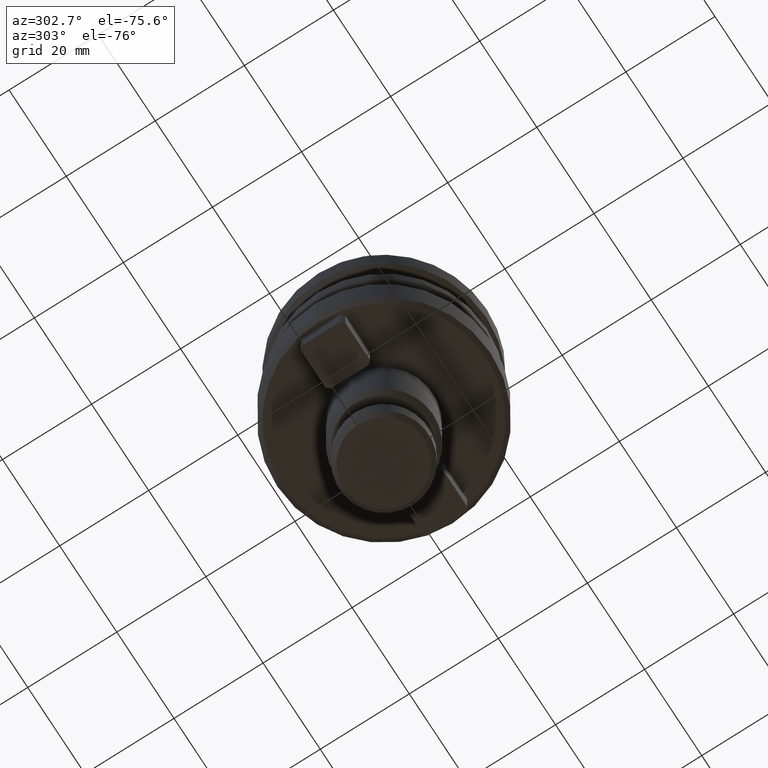
[diagram: clean part render]
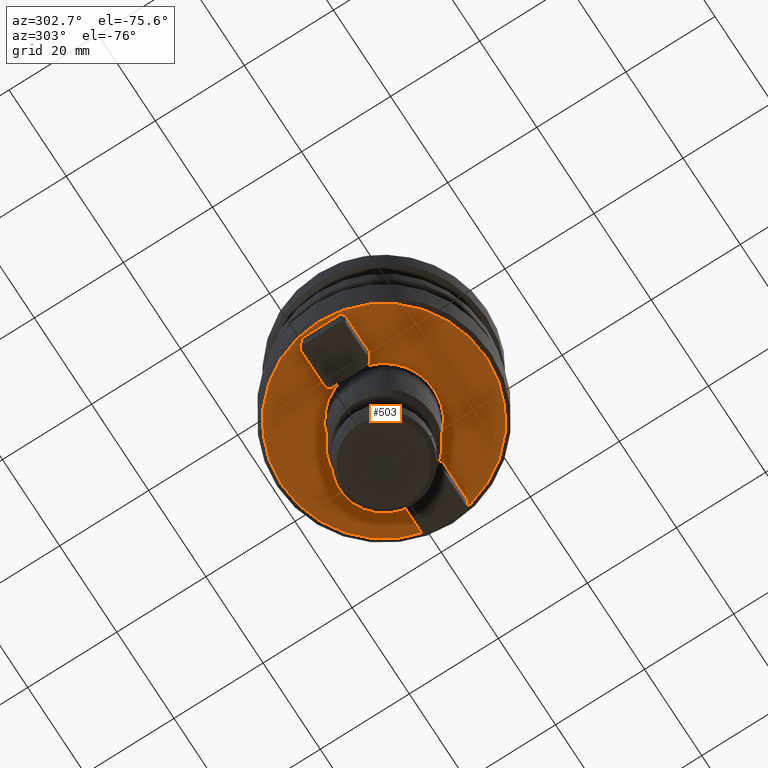
[diagram: same view with one face highlighted and labeled with its STEP entity id]
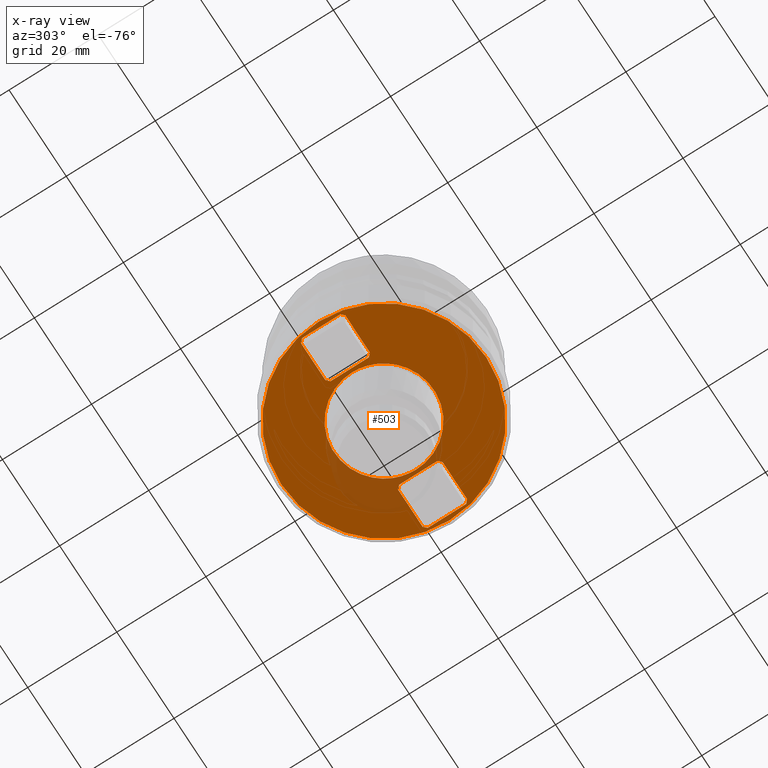
[diagram: x-ray of the same camera — body ghosted, the highlighted face saturated]
A machine part, auxiliary view. The second image highlights one B-rep face of the part: STEP entity #503.
The next image is the same camera in x-ray: the body ghosted, the highlighted face saturated — about 10% of this face is hidden behind the body in this view.
In plain terms, the highlighted planar face has unit normal (0, 0, 1).
Its self-contained STEP definition (entity closure, byte-faithful):
#10 =( BOUNDED_CURVE ( )  B_SPLINE_CURVE ( 3, ( #273, #191, #180, #177 ),
 .UNSPECIFIED., .F., .F. ) 
 B_SPLINE_CURVE_WITH_KNOTS ( ( 4, 4 ),
 ( 0.0000000000000000000, 1.000000000000000000 ),
 .UNSPECIFIED. ) 
 CURVE ( )  GEOMETRIC_REPRESENTATION_ITEM ( )  RATIONAL_B_SPLINE_CURVE ( ( 0.9565783019699934900, 0.3188594339899975000, 0.3188594339899975000, 0.9565783019699934900 ) ) 
 REPRESENTATION_ITEM ( '' )  );
#13 = CARTESIAN_POINT ( 'NONE',  ( -21.64999999999999900, 4.649999999999999500, -40.00000000000000000 ) ) ;
#18 = CARTESIAN_POINT ( 'NONE',  ( 21.99999999929599800, -4.300000000073999300, -40.00000000000000000 ) ) ;
#43 = VECTOR ( 'NONE', #2995, 1000.000000000000000 ) ;
#54 = EDGE_LOOP ( 'NONE', ( #1241, #2625, #2716, #2242, #2395, #170, #3248, #1520 ) ) ;
#86 = CARTESIAN_POINT ( 'NONE',  ( 12.69999999832399800, -5.000000000897999900, -40.00000000000000000 ) ) ;
#88 = DIRECTION ( 'NONE',  ( 0.7071067811865470200, -0.7071067811865479100, -0.0000000000000000000 ) ) ;
#119 = VECTOR ( 'NONE', #88, 1000.000000000000100 ) ;
#140 = VERTEX_POINT ( 'NONE', #1696 ) ;
#166 = CARTESIAN_POINT ( 'NONE',  ( 11.99999999000000600, 0.0000000000000000000, -40.00000000000000000 ) ) ;
#167 = ORIENTED_EDGE ( 'NONE', *, *, #1588, .T. ) ;
#170 = ORIENTED_EDGE ( 'NONE', *, *, #3100, .F. ) ;
#175 = EDGE_CURVE ( 'NONE', #140, #2401, #3092, .T. ) ;
#176 = ORIENTED_EDGE ( 'NONE', *, *, #2217, .T. ) ;
#177 = CARTESIAN_POINT ( 'NONE',  ( -11.25000000745442300, 0.0000000000000000000, -39.99999999984029100 ) ) ;
#180 = CARTESIAN_POINT ( 'NONE',  ( -11.24999999919492700, -22.49999999937216100, -39.99999999973381600 ) ) ;
#191 = CARTESIAN_POINT ( 'NONE',  ( 11.24999999919492700, -22.49999999937216100, -39.99999999973381600 ) ) ;
#199 = LINE ( 'NONE', #470, #2884 ) ;
#200 = CIRCLE ( 'NONE', #2224, 22.99999999999996400 ) ;
#203 = CARTESIAN_POINT ( 'NONE',  ( 21.99999999718399800, 0.0000000000000000000, -40.00000000000000000 ) ) ;
#215 = ORIENTED_EDGE ( 'NONE', *, *, #1474, .T. ) ;
#232 = VERTEX_POINT ( 'NONE', #1494 ) ;
#273 = CARTESIAN_POINT ( 'NONE',  ( 11.25000000745442600, 0.0000000000000000000, -39.99999999984029100 ) ) ;
#277 = EDGE_CURVE ( 'NONE', #2206, #2190, #933, .T. ) ;
#282 = FACE_BOUND ( 'NONE', #2356, .T. ) ;
#292 = VECTOR ( 'NONE', #2956, 1000.000000000000100 ) ;
#293 = EDGE_CURVE ( 'NONE', #2963, #1307, #1834, .T. ) ;
#324 = AXIS2_PLACEMENT_3D ( 'NONE', #1735, #1523, #1728 ) ;
#334 = VECTOR ( 'NONE', #2991, 1000.000000000000100 ) ;
#443 = CARTESIAN_POINT ( 'NONE',  ( 11.25000000745442600, 0.0000000000000000000, -39.99999999984029100 ) ) ;
#444 = CARTESIAN_POINT ( 'NONE',  ( 11.24999999919492700, 22.49999999937216100, -39.99999999973381600 ) ) ;
#464 = CARTESIAN_POINT ( 'NONE',  ( -11.25000000745442300, 0.0000000000000000000, -39.99999999984029100 ) ) ;
#469 = CARTESIAN_POINT ( 'NONE',  ( -11.24999999919492700, 22.49999999937216100, -39.99999999973381600 ) ) ;
#470 = CARTESIAN_POINT ( 'NONE',  ( 12.35000000000000000, 4.649999999999999500, -40.00000000000000000 ) ) ;
#479 = DIRECTION ( 'NONE',  ( 0.0000000000000000000, 1.000000000000000000, 0.0000000000000000000 ) ) ;
#503 = ADVANCED_FACE ( 'NONE', ( #3290, #282, #1255, #1919 ), #1739, .F. ) ;
#519 = CARTESIAN_POINT ( 'NONE',  ( 12.69999999832399800, 5.000000000897999900, -40.00000000000000000 ) ) ;
#522 = LINE ( 'NONE', #13, #334 ) ;
#523 = CARTESIAN_POINT ( 'NONE',  ( -21.99999999718400200, 0.0000000000000000000, -40.00000000000000000 ) ) ;
#547 = ORIENTED_EDGE ( 'NONE', *, *, #841, .F. ) ;
#551 = EDGE_CURVE ( 'NONE', #2008, #2798, #199, .T. ) ;
#563 = ORIENTED_EDGE ( 'NONE', *, *, #3324, .F. ) ;
#567 = ORIENTED_EDGE ( 'NONE', *, *, #1550, .F. ) ;
#603 = DIRECTION ( 'NONE',  ( -0.7071067811865470200, 0.7071067811865479100, 0.0000000000000000000 ) ) ;
#615 = VERTEX_POINT ( 'NONE', #1905 ) ;
#622 = VERTEX_POINT ( 'NONE', #1907 ) ;
#645 = CARTESIAN_POINT ( 'NONE',  ( -12.69999999832400000, 5.000000000897999900, -40.00000000000000000 ) ) ;
#768 = EDGE_CURVE ( 'NONE', #615, #3287, #1638, .T. ) ;
#827 = EDGE_CURVE ( 'NONE', #1166, #1307, #2474, .T. ) ;
#828 = ORIENTED_EDGE ( 'NONE', *, *, #2836, .F. ) ;
#841 = EDGE_CURVE ( 'NONE', #2054, #2678, #2273, .T. ) ;
#878 = VECTOR ( 'NONE', #2704, 1000.000000000000100 ) ;
#904 = LINE ( 'NONE', #2621, #1379 ) ;
#933 = LINE ( 'NONE', #1752, #1738 ) ;
#987 = VECTOR ( 'NONE', #2031, 1000.000000000000100 ) ;
#1002 = VERTEX_POINT ( 'NONE', #3071 ) ;
#1018 = VERTEX_POINT ( 'NONE', #3087 ) ;
#1084 = LINE ( 'NONE', #1559, #119 ) ;
#1166 = VERTEX_POINT ( 'NONE', #3365 ) ;
#1176 = VECTOR ( 'NONE', #2489, 1000.000000000000000 ) ;
#1225 = EDGE_CURVE ( 'NONE', #2321, #1018, #10, .T. ) ;
#1241 = ORIENTED_EDGE ( 'NONE', *, *, #551, .F. ) ;
#1244 = LINE ( 'NONE', #166, #43 ) ;
#1255 = FACE_BOUND ( 'NONE', #54, .T. ) ;
#1273 = CARTESIAN_POINT ( 'NONE',  ( 0.0000000000000000000, 5.233505283446285800E-030, -40.00000000000003600 ) ) ;
#1291 =( BOUNDED_CURVE ( )  B_SPLINE_CURVE ( 3, ( #464, #469, #444, #443 ),
 .UNSPECIFIED., .F., .F. ) 
 B_SPLINE_CURVE_WITH_KNOTS ( ( 4, 4 ),
 ( 0.0000000000000000000, 1.000000000000000000 ),
 .UNSPECIFIED. ) 
 CURVE ( )  GEOMETRIC_REPRESENTATION_ITEM ( )  RATIONAL_B_SPLINE_CURVE ( ( 0.9565783019699930500, 0.3188594339899972800, 0.3188594339899972800, 0.9565783019699930500 ) ) 
 REPRESENTATION_ITEM ( '' )  );
#1307 = VERTEX_POINT ( 'NONE', #86 ) ;
#1375 = LINE ( 'NONE', #523, #1380 ) ;
#1379 = VECTOR ( 'NONE', #1422, 1000.000000000000000 ) ;
#1380 = VECTOR ( 'NONE', #479, 1000.000000000000000 ) ;
#1402 = DIRECTION ( 'NONE',  ( -0.7071067811865470200, 0.7071067811865479100, -0.0000000000000000000 ) ) ;
#1417 = EDGE_CURVE ( 'NONE', #2054, #1002, #522, .T. ) ;
#1422 = DIRECTION ( 'NONE',  ( -1.000000000000000000, -0.0000000000000000000, -0.0000000000000000000 ) ) ;
#1431 = CARTESIAN_POINT ( 'NONE',  ( -21.64999999999999900, -4.649999999999999500, -40.00000000000000000 ) ) ;
#1457 = DIRECTION ( 'NONE',  ( -1.000000000000000000, -0.0000000000000000000, -0.0000000000000000000 ) ) ;
#1459 = CARTESIAN_POINT ( 'NONE',  ( 0.0000000000000000000, -5.000000003591999600, -40.00000000000000000 ) ) ;
#1460 = DIRECTION ( 'NONE',  ( -0.0000000000000000000, 1.508455196501571700E-016, -1.000000000000000000 ) ) ;
#1474 = EDGE_CURVE ( 'NONE', #232, #622, #3001, .T. ) ;
#1481 = EDGE_LOOP ( 'NONE', ( #2896, #2306 ) ) ;
#1490 = DIRECTION ( 'NONE',  ( 1.000000000000000000, 0.0000000000000000000, 0.0000000000000000000 ) ) ;
#1494 = CARTESIAN_POINT ( 'NONE',  ( 0.0000000000000000000, -22.99999999999996400, -40.00000000000003600 ) ) ;
#1498 = CARTESIAN_POINT ( 'NONE',  ( 0.0000000000000000000, 5.000000003591999600, -40.00000000000000000 ) ) ;
#1520 = ORIENTED_EDGE ( 'NONE', *, *, #2520, .F. ) ;
#1523 = DIRECTION ( 'NONE',  ( 0.0000000000000000000, 0.0000000000000000000, 1.000000000000000000 ) ) ;
#1550 = EDGE_CURVE ( 'NONE', #1625, #140, #904, .T. ) ;
#1559 = CARTESIAN_POINT ( 'NONE',  ( -12.35000000000000000, 4.649999999999999500, -40.00000000000000000 ) ) ;
#1584 = VECTOR ( 'NONE', #1457, 1000.000000000000000 ) ;
#1587 = DIRECTION ( 'NONE',  ( 0.0000000000000000000, -1.000000000000000000, 0.0000000000000000000 ) ) ;
#1588 = EDGE_CURVE ( 'NONE', #622, #232, #200, .T. ) ;
#1590 = ORIENTED_EDGE ( 'NONE', *, *, #175, .F. ) ;
#1606 = LINE ( 'NONE', #2065, #987 ) ;
#1625 = VERTEX_POINT ( 'NONE', #2064 ) ;
#1630 = DIRECTION ( 'NONE',  ( -0.0000000000000000000, 1.508455196501571700E-016, -1.000000000000000000 ) ) ;
#1638 = LINE ( 'NONE', #2510, #1176 ) ;
#1680 = CARTESIAN_POINT ( 'NONE',  ( -21.99999999929599800, -4.300000000073999300, -40.00000000000000000 ) ) ;
#1696 = CARTESIAN_POINT ( 'NONE',  ( -21.29999999847200000, -5.000000000897999900, -40.00000000000000000 ) ) ;
#1700 = ORIENTED_EDGE ( 'NONE', *, *, #768, .F. ) ;
#1728 = DIRECTION ( 'NONE',  ( 1.000000000000000000, 0.0000000000000000000, 0.0000000000000000000 ) ) ;
#1732 = EDGE_CURVE ( 'NONE', #3177, #2963, #3192, .T. ) ;
#1735 = CARTESIAN_POINT ( 'NONE',  ( -23.27600000000000000, -23.27600000000000000, -40.00000000000000000 ) ) ;
#1738 = VECTOR ( 'NONE', #603, 1000.000000000000100 ) ;
#1739 = PLANE ( 'NONE',  #324 ) ;
#1752 = CARTESIAN_POINT ( 'NONE',  ( 21.64999999999999900, 4.649999999999999500, -40.00000000000000000 ) ) ;
#1828 = DIRECTION ( 'NONE',  ( 0.7071067811865470200, 0.7071067811865479100, -0.0000000000000000000 ) ) ;
#1834 = LINE ( 'NONE', #1459, #1584 ) ;
#1840 = VECTOR ( 'NONE', #1490, 1000.000000000000000 ) ;
#1859 = CARTESIAN_POINT ( 'NONE',  ( 11.25000000745442600, 0.0000000000000000000, -39.99999999984029100 ) ) ;
#1880 = DIRECTION ( 'NONE',  ( 0.0000000000000000000, -1.000000000000000000, 0.0000000000000000000 ) ) ;
#1905 = CARTESIAN_POINT ( 'NONE',  ( -11.99999999750000000, 4.300000000074001100, -40.00000000000000000 ) ) ;
#1907 = CARTESIAN_POINT ( 'NONE',  ( 2.877919977996278300E-015, 22.99999999999996400, -40.00000000000003600 ) ) ;
#1919 = FACE_OUTER_BOUND ( 'NONE', #1961, .T. ) ;
#1936 = LINE ( 'NONE', #1498, #1840 ) ;
#1961 = EDGE_LOOP ( 'NONE', ( #215, #167 ) ) ;
#2008 = VERTEX_POINT ( 'NONE', #2374 ) ;
#2031 = DIRECTION ( 'NONE',  ( 0.7071067811865470200, 0.7071067811865479100, 0.0000000000000000000 ) ) ;
#2036 = CARTESIAN_POINT ( 'NONE',  ( 21.64999999999999900, -4.649999999999999500, -40.00000000000000000 ) ) ;
#2047 = CARTESIAN_POINT ( 'NONE',  ( 21.99999999929599800, 4.300000000074002000, -40.00000000000000000 ) ) ;
#2054 = VERTEX_POINT ( 'NONE', #2299 ) ;
#2064 = CARTESIAN_POINT ( 'NONE',  ( -12.69999999832400000, -5.000000000897999900, -40.00000000000000000 ) ) ;
#2065 = CARTESIAN_POINT ( 'NONE',  ( -12.35000000000000000, -4.649999999999999500, -40.00000000000000000 ) ) ;
#2098 = VECTOR ( 'NONE', #1402, 1000.000000000000100 ) ;
#2165 = CARTESIAN_POINT ( 'NONE',  ( 21.29999999847200000, 5.000000000897999900, -40.00000000000000000 ) ) ;
#2190 = VERTEX_POINT ( 'NONE', #2165 ) ;
#2206 = VERTEX_POINT ( 'NONE', #2047 ) ;
#2217 = EDGE_CURVE ( 'NONE', #1625, #3287, #1606, .T. ) ;
#2224 = AXIS2_PLACEMENT_3D ( 'NONE', #1273, #1460, #1880 ) ;
#2235 = VECTOR ( 'NONE', #3016, 1000.000000000000000 ) ;
#2242 = ORIENTED_EDGE ( 'NONE', *, *, #293, .F. ) ;
#2273 = LINE ( 'NONE', #2717, #3096 ) ;
#2299 = CARTESIAN_POINT ( 'NONE',  ( -21.29999999847200000, 5.000000000897999900, -40.00000000000000000 ) ) ;
#2306 = ORIENTED_EDGE ( 'NONE', *, *, #2841, .F. ) ;
#2321 = VERTEX_POINT ( 'NONE', #1859 ) ;
#2356 = EDGE_LOOP ( 'NONE', ( #563, #547, #2482, #828, #1590, #567, #176, #1700 ) ) ;
#2374 = CARTESIAN_POINT ( 'NONE',  ( 11.99999999750000200, 4.300000000074002000, -40.00000000000000000 ) ) ;
#2375 = CARTESIAN_POINT ( 'NONE',  ( 21.29999999847200000, -5.000000000897999900, -40.00000000000000000 ) ) ;
#2395 = ORIENTED_EDGE ( 'NONE', *, *, #1732, .F. ) ;
#2401 = VERTEX_POINT ( 'NONE', #1680 ) ;
#2474 = LINE ( 'NONE', #2626, #878 ) ;
#2482 = ORIENTED_EDGE ( 'NONE', *, *, #1417, .T. ) ;
#2489 = DIRECTION ( 'NONE',  ( -0.0000000000000000000, -1.000000000000000000, -0.0000000000000000000 ) ) ;
#2510 = CARTESIAN_POINT ( 'NONE',  ( -11.99999998999999900, 0.0000000000000000000, -40.00000000000000000 ) ) ;
#2520 = EDGE_CURVE ( 'NONE', #2798, #2190, #1936, .T. ) ;
#2562 = LINE ( 'NONE', #203, #2235 ) ;
#2617 = AXIS2_PLACEMENT_3D ( 'NONE', #2746, #1630, #1587 ) ;
#2621 = CARTESIAN_POINT ( 'NONE',  ( 0.0000000000000000000, -5.000000003591999600, -40.00000000000000000 ) ) ;
#2625 = ORIENTED_EDGE ( 'NONE', *, *, #3019, .F. ) ;
#2626 = CARTESIAN_POINT ( 'NONE',  ( 12.35000000000000000, -4.649999999999999500, -40.00000000000000000 ) ) ;
#2678 = VERTEX_POINT ( 'NONE', #645 ) ;
#2704 = DIRECTION ( 'NONE',  ( 0.7071067811865470200, -0.7071067811865479100, 0.0000000000000000000 ) ) ;
#2716 = ORIENTED_EDGE ( 'NONE', *, *, #827, .T. ) ;
#2717 = CARTESIAN_POINT ( 'NONE',  ( 0.0000000000000000000, 5.000000003591999600, -40.00000000000000000 ) ) ;
#2720 = DIRECTION ( 'NONE',  ( 1.000000000000000000, 0.0000000000000000000, 0.0000000000000000000 ) ) ;
#2746 = CARTESIAN_POINT ( 'NONE',  ( 0.0000000000000000000, 5.233505283446285800E-030, -40.00000000000003600 ) ) ;
#2783 = CARTESIAN_POINT ( 'NONE',  ( -11.99999999750000000, -4.300000000073999300, -40.00000000000000000 ) ) ;
#2798 = VERTEX_POINT ( 'NONE', #519 ) ;
#2836 = EDGE_CURVE ( 'NONE', #2401, #1002, #1375, .T. ) ;
#2841 = EDGE_CURVE ( 'NONE', #1018, #2321, #1291, .T. ) ;
#2884 = VECTOR ( 'NONE', #1828, 1000.000000000000100 ) ;
#2896 = ORIENTED_EDGE ( 'NONE', *, *, #1225, .F. ) ;
#2956 = DIRECTION ( 'NONE',  ( -0.7071067811865470200, -0.7071067811865479100, -0.0000000000000000000 ) ) ;
#2963 = VERTEX_POINT ( 'NONE', #2375 ) ;
#2991 = DIRECTION ( 'NONE',  ( -0.7071067811865470200, -0.7071067811865479100, 0.0000000000000000000 ) ) ;
#2995 = DIRECTION ( 'NONE',  ( 0.0000000000000000000, 1.000000000000000000, 0.0000000000000000000 ) ) ;
#3001 = CIRCLE ( 'NONE', #2617, 22.99999999999996400 ) ;
#3016 = DIRECTION ( 'NONE',  ( -0.0000000000000000000, -1.000000000000000000, -0.0000000000000000000 ) ) ;
#3019 = EDGE_CURVE ( 'NONE', #1166, #2008, #1244, .T. ) ;
#3071 = CARTESIAN_POINT ( 'NONE',  ( -21.99999999929599800, 4.300000000074002000, -40.00000000000000000 ) ) ;
#3087 = CARTESIAN_POINT ( 'NONE',  ( -11.25000000745442300, 0.0000000000000000000, -39.99999999984029100 ) ) ;
#3092 = LINE ( 'NONE', #1431, #2098 ) ;
#3096 = VECTOR ( 'NONE', #2720, 1000.000000000000000 ) ;
#3100 = EDGE_CURVE ( 'NONE', #2206, #3177, #2562, .T. ) ;
#3177 = VERTEX_POINT ( 'NONE', #18 ) ;
#3192 = LINE ( 'NONE', #2036, #292 ) ;
#3248 = ORIENTED_EDGE ( 'NONE', *, *, #277, .T. ) ;
#3287 = VERTEX_POINT ( 'NONE', #2783 ) ;
#3290 = FACE_BOUND ( 'NONE', #1481, .T. ) ;
#3324 = EDGE_CURVE ( 'NONE', #2678, #615, #1084, .T. ) ;
#3365 = CARTESIAN_POINT ( 'NONE',  ( 11.99999999750000200, -4.300000000074000200, -40.00000000000000000 ) ) ;